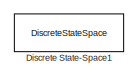
[diagram: root canvas - part 1/4, top center region]
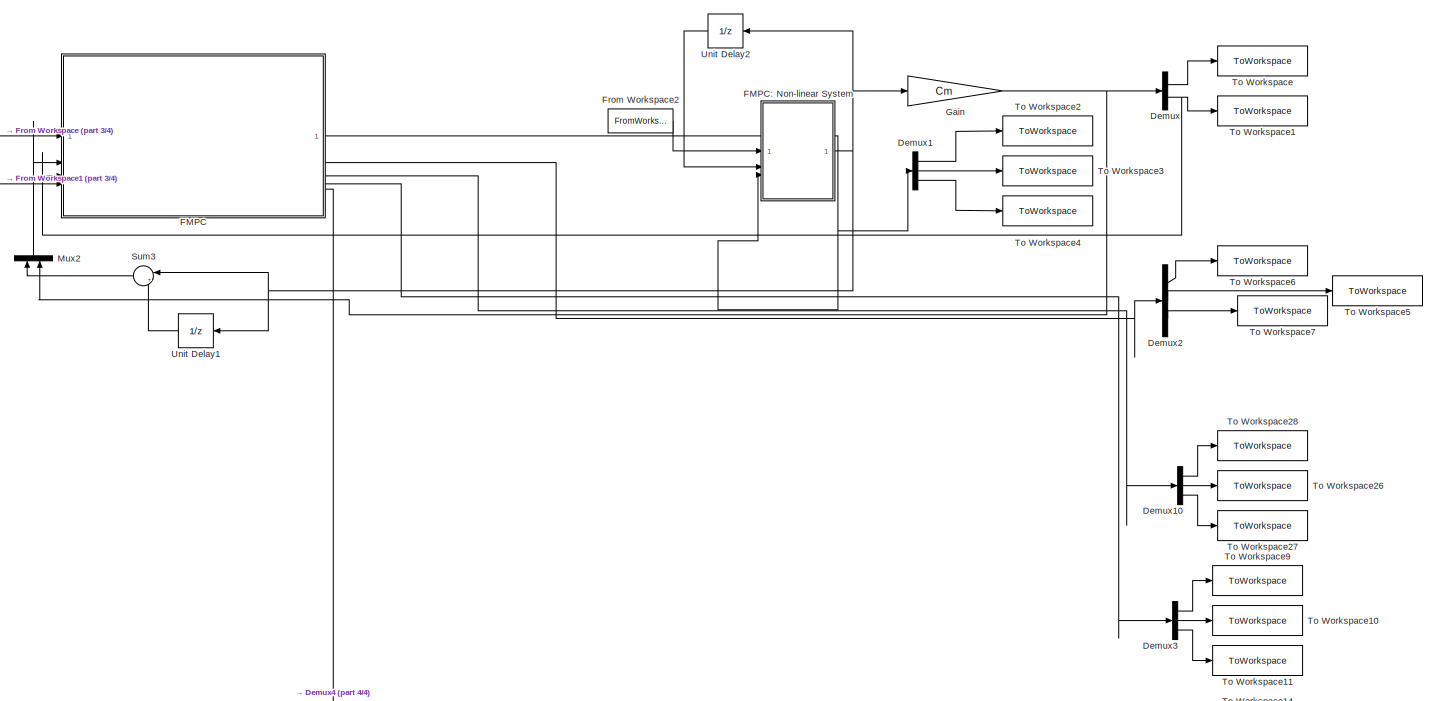
[diagram: root canvas - part 2/4, full width, bottom band]
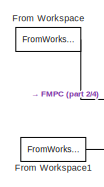
[diagram: root canvas - part 3/4, middle left region]
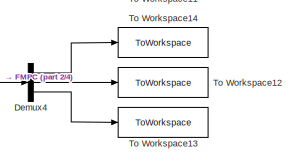
[diagram: root canvas - part 4/4, bottom right region]
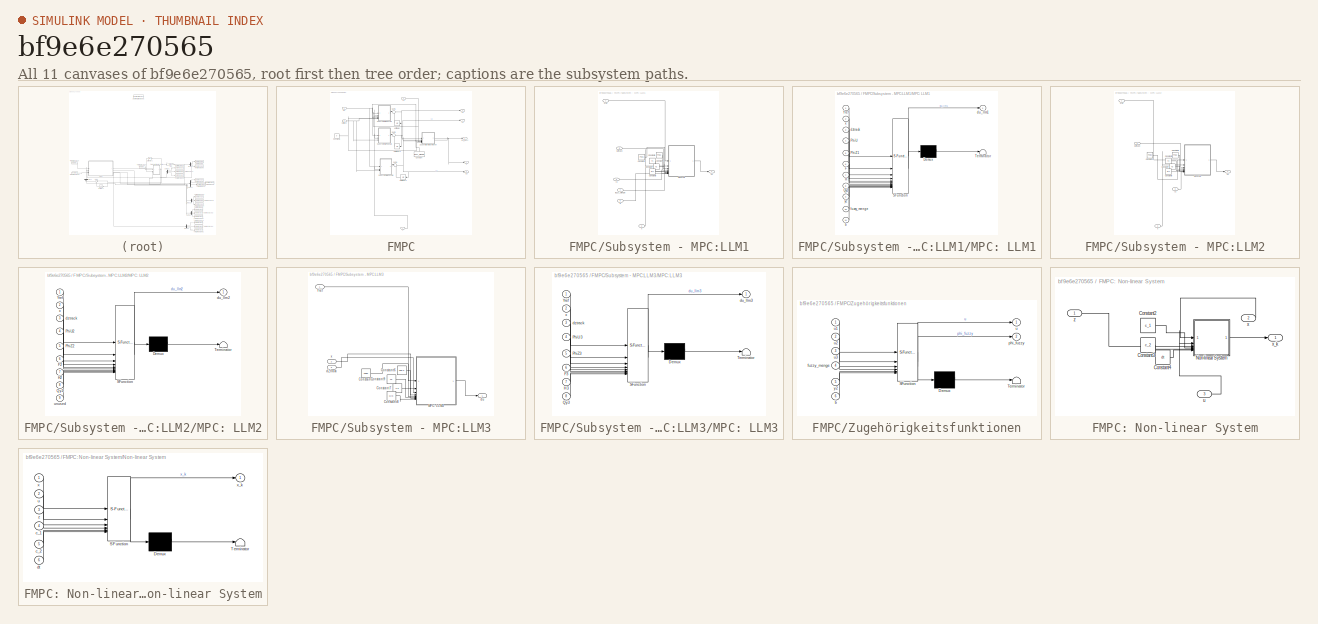
[diagram: thumbnail index - all 11 canvases of the model, root first then tree order]
MODEL slx_bf9e6e270565
KIND model
CONFIG AbsTol = auto
CONFIG EnableMultiTasking = off
CONFIG FixedStep = auto
CONFIG MaxStep = auto
CONFIG MinStep = auto
CONFIG RelTol = 1e-7
CONFIG SampleTimeConstraint = Unconstrained
CONFIG SolverName = VariableStepAuto
CONFIG StartTime = 0.0
CONFIG StopTime = T
BLOCK [Demux] Demux
  Outputs = 2
BLOCK [Demux] Demux1
  Outputs = 3
BLOCK [Demux] Demux10
  Outputs = 3
BLOCK [Demux] Demux2
  Outputs = 3
BLOCK [Demux] Demux3
  Outputs = 3
BLOCK [Demux] Demux4
  Outputs = 3
BLOCK [DiscreteStateSpace] Discrete State-Space1
  A = Am
  B = Bm
  C = C_hilf
  Commented = on
  D = D
  SampleTime = dt
BLOCK [SubSystem] FMPC
BLOCK [Constant] FMPC/Constant
  NameLocation = right
  Value = fuzzy_menge
BLOCK [Constant] FMPC/Constant1
  Value = b
BLOCK [SubSystem] FMPC/Subsystem - MPC:LLM1
BLOCK [Constant] FMPC/Subsystem - MPC:LLM1/Constant1
  SampleTime = dt
  Value = PhiZ1
BLOCK [Constant] FMPC/Subsystem - MPC:LLM1/Constant6
  SampleTime = dt
  Value = PhiU1
BLOCK [Constant] FMPC/Subsystem - MPC:LLM1/Constant7
  SampleTime = dt
  Value = H1
BLOCK [Constant] FMPC/Subsystem - MPC:LLM1/Constant8
  SampleTime = dt
  Value = Qy1
BLOCK [Constant] FMPC/Subsystem - MPC:LLM1/Constant9
  SampleTime = dt
  Value = F1
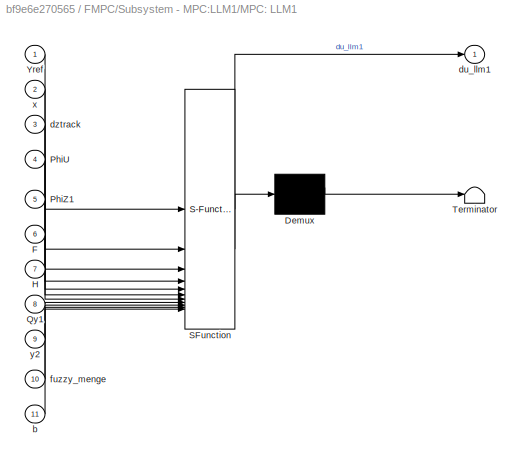
BLOCK [SubSystem] FMPC/Subsystem - MPC:LLM1/MPC: LLM1
  ErrorFcn = Stateflow.Translate.translate
  LibrarySourceBlock = simulink/User-Defined\nFunctions/MATLAB Function
  PermitHierarchicalResolution = ExplicitOnly
  SFBlockType = MATLAB Function
  TreatAsAtomicUnit = on
BLOCK [Demux] FMPC/Subsystem - MPC:LLM1/MPC: LLM1/ Demux 
  Outputs = 1
BLOCK [S-Function] FMPC/Subsystem - MPC:LLM1/MPC: LLM1/ SFunction 
  EnableBusSupport = on
  FunctionName = sf_sfun
  PortCounts = [11 2]
  SFcnIsStateOwnerBlock = off
  SFunctionDeploymentMode = off
  Tag = Stateflow S-Function 2
BLOCK [Terminator] FMPC/Subsystem - MPC:LLM1/MPC: LLM1/ Terminator 
BLOCK [Inport] FMPC/Subsystem - MPC:LLM1/MPC: LLM1/F
  Port = 6
BLOCK [Inport] FMPC/Subsystem - MPC:LLM1/MPC: LLM1/H
  Port = 7
BLOCK [Inport] FMPC/Subsystem - MPC:LLM1/MPC: LLM1/PhiU
  Port = 4
BLOCK [Inport] FMPC/Subsystem - MPC:LLM1/MPC: LLM1/PhiZ1
  Port = 5
BLOCK [Inport] FMPC/Subsystem - MPC:LLM1/MPC: LLM1/Qy1
  Port = 8
BLOCK [Inport] FMPC/Subsystem - MPC:LLM1/MPC: LLM1/Yref
BLOCK [Inport] FMPC/Subsystem - MPC:LLM1/MPC: LLM1/b
  Port = 11
BLOCK [Outport] FMPC/Subsystem - MPC:LLM1/MPC: LLM1/du_llm1
BLOCK [Inport] FMPC/Subsystem - MPC:LLM1/MPC: LLM1/dztrack
  Port = 3
BLOCK [Inport] FMPC/Subsystem - MPC:LLM1/MPC: LLM1/fuzzy_menge
  Port = 10
BLOCK [Inport] FMPC/Subsystem - MPC:LLM1/MPC: LLM1/x
  Port = 2
BLOCK [Inport] FMPC/Subsystem - MPC:LLM1/MPC: LLM1/y2
  Port = 9
BLOCK [Inport] FMPC/Subsystem - MPC:LLM1/Yref
BLOCK [Inport] FMPC/Subsystem - MPC:LLM1/b
  Port = 5
BLOCK [Inport] FMPC/Subsystem - MPC:LLM1/dZtrack
  Port = 6
BLOCK [Outport] FMPC/Subsystem - MPC:LLM1/du
BLOCK [Inport] FMPC/Subsystem - MPC:LLM1/fuzzy_menge
  Port = 4
BLOCK [Inport] FMPC/Subsystem - MPC:LLM1/x
  Port = 2
BLOCK [Inport] FMPC/Subsystem - MPC:LLM1/y2
  Port = 3
BLOCK [SubSystem] FMPC/Subsystem - MPC:LLM2
BLOCK [Constant] FMPC/Subsystem - MPC:LLM2/Constant1
  SampleTime = dt
  Value = PhiZ2
BLOCK [Constant] FMPC/Subsystem - MPC:LLM2/Constant6
  SampleTime = dt
  Value = PhiU2
BLOCK [Constant] FMPC/Subsystem - MPC:LLM2/Constant7
  SampleTime = dt
  Value = H2
BLOCK [Constant] FMPC/Subsystem - MPC:LLM2/Constant8
  SampleTime = dt
  Value = Qy2
BLOCK [Constant] FMPC/Subsystem - MPC:LLM2/Constant9
  SampleTime = dt
  Value = F2
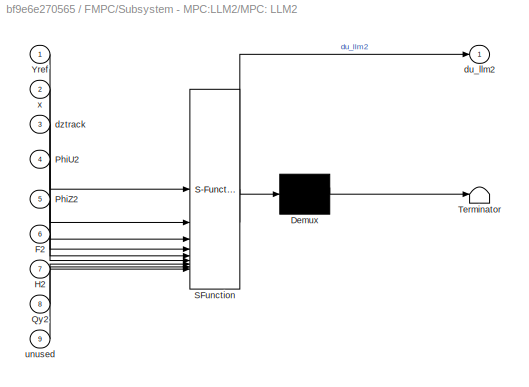
BLOCK [SubSystem] FMPC/Subsystem - MPC:LLM2/MPC: LLM2
  ErrorFcn = Stateflow.Translate.translate
  LibrarySourceBlock = simulink/User-Defined\nFunctions/MATLAB Function
  PermitHierarchicalResolution = ExplicitOnly
  SFBlockType = MATLAB Function
  TreatAsAtomicUnit = on
BLOCK [Demux] FMPC/Subsystem - MPC:LLM2/MPC: LLM2/ Demux 
  Outputs = 1
BLOCK [S-Function] FMPC/Subsystem - MPC:LLM2/MPC: LLM2/ SFunction 
  EnableBusSupport = on
  FunctionName = sf_sfun
  PortCounts = [9 2]
  SFcnIsStateOwnerBlock = off
  SFunctionDeploymentMode = off
  Tag = Stateflow S-Function 3
BLOCK [Terminator] FMPC/Subsystem - MPC:LLM2/MPC: LLM2/ Terminator 
BLOCK [Inport] FMPC/Subsystem - MPC:LLM2/MPC: LLM2/F2
  Port = 6
BLOCK [Inport] FMPC/Subsystem - MPC:LLM2/MPC: LLM2/H2
  Port = 7
BLOCK [Inport] FMPC/Subsystem - MPC:LLM2/MPC: LLM2/PhiU2
  Port = 4
BLOCK [Inport] FMPC/Subsystem - MPC:LLM2/MPC: LLM2/PhiZ2
  Port = 5
BLOCK [Inport] FMPC/Subsystem - MPC:LLM2/MPC: LLM2/Qy2
  Port = 8
BLOCK [Inport] FMPC/Subsystem - MPC:LLM2/MPC: LLM2/Yref
BLOCK [Outport] FMPC/Subsystem - MPC:LLM2/MPC: LLM2/du_llm2
BLOCK [Inport] FMPC/Subsystem - MPC:LLM2/MPC: LLM2/dztrack
  Port = 3
BLOCK [Inport] FMPC/Subsystem - MPC:LLM2/MPC: LLM2/unused
  Port = 9
BLOCK [Inport] FMPC/Subsystem - MPC:LLM2/MPC: LLM2/x
  Port = 2
BLOCK [Inport] FMPC/Subsystem - MPC:LLM2/Yref
BLOCK [Inport] FMPC/Subsystem - MPC:LLM2/dZtrack
  Port = 4
BLOCK [Outport] FMPC/Subsystem - MPC:LLM2/du
BLOCK [Inport] FMPC/Subsystem - MPC:LLM2/x
  Port = 2
BLOCK [Inport] FMPC/Subsystem - MPC:LLM2/y2
  Port = 3
BLOCK [SubSystem] FMPC/Subsystem - MPC:LLM3
BLOCK [Constant] FMPC/Subsystem - MPC:LLM3/Constant1
  SampleTime = dt
  Value = PhiZ3
BLOCK [Constant] FMPC/Subsystem - MPC:LLM3/Constant6
  SampleTime = dt
  Value = PhiU3
BLOCK [Constant] FMPC/Subsystem - MPC:LLM3/Constant7
  SampleTime = dt
  Value = H3
BLOCK [Constant] FMPC/Subsystem - MPC:LLM3/Constant8
  SampleTime = dt
  Value = Qy3
BLOCK [Constant] FMPC/Subsystem - MPC:LLM3/Constant9
  SampleTime = dt
  Value = F3
BLOCK [SubSystem] FMPC/Subsystem - MPC:LLM3/MPC: LLM3
  ErrorFcn = Stateflow.Translate.translate
  LibrarySourceBlock = simulink/User-Defined\nFunctions/MATLAB Function
  PermitHierarchicalResolution = ExplicitOnly
  SFBlockType = MATLAB Function
  TreatAsAtomicUnit = on
BLOCK [Demux] FMPC/Subsystem - MPC:LLM3/MPC: LLM3/ Demux 
  Outputs = 1
BLOCK [S-Function] FMPC/Subsystem - MPC:LLM3/MPC: LLM3/ SFunction 
  EnableBusSupport = on
  FunctionName = sf_sfun
  PortCounts = [8 2]
  SFcnIsStateOwnerBlock = off
  SFunctionDeploymentMode = off
  Tag = Stateflow S-Function 4
BLOCK [Terminator] FMPC/Subsystem - MPC:LLM3/MPC: LLM3/ Terminator 
BLOCK [Inport] FMPC/Subsystem - MPC:LLM3/MPC: LLM3/F3
  Port = 6
BLOCK [Inport] FMPC/Subsystem - MPC:LLM3/MPC: LLM3/H3
  Port = 7
BLOCK [Inport] FMPC/Subsystem - MPC:LLM3/MPC: LLM3/PhiU3
  Port = 4
BLOCK [Inport] FMPC/Subsystem - MPC:LLM3/MPC: LLM3/PhiZ3
  Port = 5
BLOCK [Inport] FMPC/Subsystem - MPC:LLM3/MPC: LLM3/Qy3
  Port = 8
BLOCK [Inport] FMPC/Subsystem - MPC:LLM3/MPC: LLM3/Yref
BLOCK [Outport] FMPC/Subsystem - MPC:LLM3/MPC: LLM3/du_llm3
BLOCK [Inport] FMPC/Subsystem - MPC:LLM3/MPC: LLM3/dztrack
  Port = 3
BLOCK [Inport] FMPC/Subsystem - MPC:LLM3/MPC: LLM3/x
  Port = 2
BLOCK [Inport] FMPC/Subsystem - MPC:LLM3/Yref
BLOCK [Inport] FMPC/Subsystem - MPC:LLM3/dZtrack
  Port = 3
BLOCK [Outport] FMPC/Subsystem - MPC:LLM3/du
BLOCK [Inport] FMPC/Subsystem - MPC:LLM3/x
  Port = 2
BLOCK [Sum] FMPC/Sum1
  Inputs = |++
BLOCK [Sum] FMPC/Sum2
  Inputs = |++
BLOCK [Sum] FMPC/Sum4
  Inputs = |++
BLOCK [UnitDelay] FMPC/Unit Delay
  HasFrameUpgradeWarning = on
  SampleTime = dt
BLOCK [UnitDelay] FMPC/Unit Delay3
  HasFrameUpgradeWarning = on
  SampleTime = dt
BLOCK [UnitDelay] FMPC/Unit Delay4
  HasFrameUpgradeWarning = on
  SampleTime = dt
BLOCK [Inport] FMPC/Yref
BLOCK [SubSystem] FMPC/Zugehörigkeitsfunktionen
  ErrorFcn = Stateflow.Translate.translate
  LibrarySourceBlock = simulink/User-Defined\nFunctions/MATLAB Function
  PermitHierarchicalResolution = ExplicitOnly
  SFBlockType = MATLAB Function
  TreatAsAtomicUnit = on
BLOCK [Demux] FMPC/Zugehörigkeitsfunktionen/ Demux 
  Outputs = 1
BLOCK [S-Function] FMPC/Zugehörigkeitsfunktionen/ SFunction 
  EnableBusSupport = on
  FunctionName = sf_sfun
  PortCounts = [6 3]
  SFcnIsStateOwnerBlock = off
  SFunctionDeploymentMode = off
  Tag = Stateflow S-Function 6
BLOCK [Terminator] FMPC/Zugehörigkeitsfunktionen/ Terminator 
BLOCK [Inport] FMPC/Zugehörigkeitsfunktionen/b
  Port = 6
BLOCK [Inport] FMPC/Zugehörigkeitsfunktionen/fuzzy_menge
  Port = 4
BLOCK [Outport] FMPC/Zugehörigkeitsfunktionen/phi_fuzzy
  Port = 2
BLOCK [Outport] FMPC/Zugehörigkeitsfunktionen/u
BLOCK [Inport] FMPC/Zugehörigkeitsfunktionen/u1
BLOCK [Inport] FMPC/Zugehörigkeitsfunktionen/u2
  Port = 2
BLOCK [Inport] FMPC/Zugehörigkeitsfunktionen/u3
  Port = 3
BLOCK [Inport] FMPC/Zugehörigkeitsfunktionen/y2
  Port = 5
BLOCK [Inport] FMPC/dZtrack
  Port = 4
BLOCK [Outport] FMPC/phi_fuzzy
  Port = 2
BLOCK [Outport] FMPC/u
BLOCK [Outport] FMPC/u1
  Port = 3
BLOCK [Outport] FMPC/u2
  Port = 4
BLOCK [Outport] FMPC/u3
  Port = 5
BLOCK [Inport] FMPC/x
  Port = 2
BLOCK [Inport] FMPC/y2
  Port = 3
BLOCK [SubSystem] FMPC: Non-linear System
BLOCK [Constant] FMPC: Non-linear System/Constant2
  Value = c_1
BLOCK [Constant] FMPC: Non-linear System/Constant3
  Value = c_2
BLOCK [Constant] FMPC: Non-linear System/Constant4
  Value = dt
BLOCK [SubSystem] FMPC: Non-linear System/Non-linear System
  ErrorFcn = Stateflow.Translate.translate
  LibrarySourceBlock = simulink/User-Defined\nFunctions/MATLAB Function
  PermitHierarchicalResolution = ExplicitOnly
  SFBlockType = MATLAB Function
  TreatAsAtomicUnit = on
BLOCK [Demux] FMPC: Non-linear System/Non-linear System/ Demux 
  Outputs = 1
BLOCK [S-Function] FMPC: Non-linear System/Non-linear System/ SFunction 
  EnableBusSupport = on
  FunctionName = sf_sfun
  PortCounts = [6 2]
  SFcnIsStateOwnerBlock = off
  SFunctionDeploymentMode = off
  Tag = Stateflow S-Function 1
BLOCK [Terminator] FMPC: Non-linear System/Non-linear System/ Terminator 
BLOCK [Inport] FMPC: Non-linear System/Non-linear System/c_1
  Port = 4
BLOCK [Inport] FMPC: Non-linear System/Non-linear System/c_2
  Port = 5
BLOCK [Inport] FMPC: Non-linear System/Non-linear System/dt
  Port = 6
BLOCK [Inport] FMPC: Non-linear System/Non-linear System/u
  Port = 2
BLOCK [Inport] FMPC: Non-linear System/Non-linear System/x
BLOCK [Outport] FMPC: Non-linear System/Non-linear System/x_k
BLOCK [Inport] FMPC: Non-linear System/Non-linear System/z
  Port = 3
BLOCK [Inport] FMPC: Non-linear System/u
  Port = 3
BLOCK [Inport] FMPC: Non-linear System/x
  Port = 2
BLOCK [Outport] FMPC: Non-linear System/x_k
BLOCK [Inport] FMPC: Non-linear System/z
BLOCK [FromWorkspace] From Workspace
  OutDataTypeStr = double
  SampleTime = dt
  VariableName = Y_fuehrung_SIM
BLOCK [FromWorkspace] From Workspace1
  OutDataTypeStr = double
  SampleTime = dt
  VariableName = dztrack_SIM
BLOCK [FromWorkspace] From Workspace2
  OutDataTypeStr = double
  SampleTime = dt
  VariableName = ztrack_SIM
BLOCK [Gain] Gain
  Gain = Cm
  Multiplication = Matrix(K*u)
BLOCK [Mux] Mux2
  DisplayOption = bar
  Inputs = 2
  NameLocation = right
BLOCK [Sum] Sum3
  Inputs = |+-
BLOCK [ToWorkspace] To Workspace
  FixptAsFi = on
  MaxDataPoints = inf
  SampleTime = -1
  Save2DSignal = 2-D array (concatenate along first dimension)
  VariableName = y1
BLOCK [ToWorkspace] To Workspace1
  FixptAsFi = on
  MaxDataPoints = inf
  SampleTime = -1
  Save2DSignal = 2-D array (concatenate along first dimension)
  VariableName = y2
BLOCK [ToWorkspace] To Workspace10
  FixptAsFi = on
  MaxDataPoints = inf
  SampleTime = -1
  Save2DSignal = 2-D array (concatenate along first dimension)
  VariableName = u_llm2_2
BLOCK [ToWorkspace] To Workspace11
  FixptAsFi = on
  MaxDataPoints = inf
  SampleTime = -1
  Save2DSignal = 2-D array (concatenate along first dimension)
  VariableName = u_llm2_3
BLOCK [ToWorkspace] To Workspace12
  FixptAsFi = on
  MaxDataPoints = inf
  SampleTime = -1
  Save2DSignal = 2-D array (concatenate along first dimension)
  VariableName = u_llm3_2
BLOCK [ToWorkspace] To Workspace13
  FixptAsFi = on
  MaxDataPoints = inf
  SampleTime = -1
  Save2DSignal = 2-D array (concatenate along first dimension)
  VariableName = u_llm3_3
BLOCK [ToWorkspace] To Workspace14
  FixptAsFi = on
  MaxDataPoints = inf
  SampleTime = -1
  Save2DSignal = 2-D array (concatenate along first dimension)
  VariableName = u_llm3_1
BLOCK [ToWorkspace] To Workspace2
  FixptAsFi = on
  MaxDataPoints = inf
  SampleTime = -1
  Save2DSignal = 2-D array (concatenate along first dimension)
  VariableName = u1
BLOCK [ToWorkspace] To Workspace26
  FixptAsFi = on
  MaxDataPoints = inf
  SampleTime = -1
  Save2DSignal = 2-D array (concatenate along first dimension)
  VariableName = u_llm1_2
BLOCK [ToWorkspace] To Workspace27
  FixptAsFi = on
  MaxDataPoints = inf
  SampleTime = -1
  Save2DSignal = 2-D array (concatenate along first dimension)
  VariableName = u_llm1_3
BLOCK [ToWorkspace] To Workspace28
  FixptAsFi = on
  MaxDataPoints = inf
  SampleTime = -1
  Save2DSignal = 2-D array (concatenate along first dimension)
  VariableName = u_llm1_1
BLOCK [ToWorkspace] To Workspace3
  FixptAsFi = on
  MaxDataPoints = inf
  SampleTime = -1
  Save2DSignal = 2-D array (concatenate along first dimension)
  VariableName = u2
BLOCK [ToWorkspace] To Workspace4
  FixptAsFi = on
  MaxDataPoints = inf
  SampleTime = -1
  Save2DSignal = 2-D array (concatenate along first dimension)
  VariableName = u3
BLOCK [ToWorkspace] To Workspace5
  FixptAsFi = on
  MaxDataPoints = inf
  SampleTime = -1
  Save2DSignal = 2-D array (concatenate along first dimension)
  VariableName = phi_fuzzy2
BLOCK [ToWorkspace] To Workspace6
  FixptAsFi = on
  MaxDataPoints = inf
  SampleTime = -1
  Save2DSignal = 2-D array (concatenate along first dimension)
  VariableName = phi_fuzzy1
BLOCK [ToWorkspace] To Workspace7
  FixptAsFi = on
  MaxDataPoints = inf
  SampleTime = -1
  Save2DSignal = 2-D array (concatenate along first dimension)
  VariableName = phi_fuzzy3
BLOCK [ToWorkspace] To Workspace9
  FixptAsFi = on
  MaxDataPoints = inf
  SampleTime = -1
  Save2DSignal = 2-D array (concatenate along first dimension)
  VariableName = u_llm2_1
BLOCK [UnitDelay] Unit Delay1
  HasFrameUpgradeWarning = on
  SampleTime = -1
BLOCK [UnitDelay] Unit Delay2
  HasFrameUpgradeWarning = on
  SampleTime = -1
LINE Demux10:1 -> To Workspace28:1
LINE Demux10:2 -> To Workspace26:1
LINE Demux10:3 -> To Workspace27:1
LINE Demux1:1 -> To Workspace2:1
LINE Demux1:2 -> To Workspace3:1
LINE Demux1:3 -> To Workspace4:1
LINE Demux2:1 -> To Workspace6:1
LINE Demux2:2 -> To Workspace5:1
LINE Demux2:3 -> To Workspace7:1
LINE Demux3:1 -> To Workspace9:1
LINE Demux3:2 -> To Workspace10:1
LINE Demux3:3 -> To Workspace11:1
LINE Demux4:1 -> To Workspace14:1
LINE Demux4:2 -> To Workspace12:1
LINE Demux4:3 -> To Workspace13:1
LINE Demux:1 -> To Workspace:1
NET Demux:2 -> FMPC:3, To Workspace1:1
NET FMPC/Constant1:1 -> FMPC/Subsystem - MPC:LLM1:5, FMPC/Zugehörigkeitsfunktionen:6
NET FMPC/Constant:1 -> FMPC/Subsystem - MPC:LLM1:4, FMPC/Zugehörigkeitsfunktionen:4
LINE FMPC/Subsystem - MPC:LLM1/Constant1:1 -> FMPC/Subsystem - MPC:LLM1/MPC: LLM1:5
LINE FMPC/Subsystem - MPC:LLM1/Constant6:1 -> FMPC/Subsystem - MPC:LLM1/MPC: LLM1:4
LINE FMPC/Subsystem - MPC:LLM1/Constant7:1 -> FMPC/Subsystem - MPC:LLM1/MPC: LLM1:7
LINE FMPC/Subsystem - MPC:LLM1/Constant8:1 -> FMPC/Subsystem - MPC:LLM1/MPC: LLM1:8
LINE FMPC/Subsystem - MPC:LLM1/Constant9:1 -> FMPC/Subsystem - MPC:LLM1/MPC: LLM1:6
LINE FMPC/Subsystem - MPC:LLM1/MPC: LLM1:1 -> FMPC/Subsystem - MPC:LLM1/du:1
LINE FMPC/Subsystem - MPC:LLM1/Yref:1 -> FMPC/Subsystem - MPC:LLM1/MPC: LLM1:1
LINE FMPC/Subsystem - MPC:LLM1/b:1 -> FMPC/Subsystem - MPC:LLM1/MPC: LLM1:11
LINE FMPC/Subsystem - MPC:LLM1/dZtrack:1 -> FMPC/Subsystem - MPC:LLM1/MPC: LLM1:3
LINE FMPC/Subsystem - MPC:LLM1/fuzzy_menge:1 -> FMPC/Subsystem - MPC:LLM1/MPC: LLM1:10
LINE FMPC/Subsystem - MPC:LLM1/x:1 -> FMPC/Subsystem - MPC:LLM1/MPC: LLM1:2
LINE FMPC/Subsystem - MPC:LLM1/y2:1 -> FMPC/Subsystem - MPC:LLM1/MPC: LLM1:9
LINE FMPC/Subsystem - MPC:LLM1:1 -> FMPC/Sum1:1
LINE FMPC/Subsystem - MPC:LLM2/Constant1:1 -> FMPC/Subsystem - MPC:LLM2/MPC: LLM2:5
LINE FMPC/Subsystem - MPC:LLM2/Constant6:1 -> FMPC/Subsystem - MPC:LLM2/MPC: LLM2:4
LINE FMPC/Subsystem - MPC:LLM2/Constant7:1 -> FMPC/Subsystem - MPC:LLM2/MPC: LLM2:7
LINE FMPC/Subsystem - MPC:LLM2/Constant8:1 -> FMPC/Subsystem - MPC:LLM2/MPC: LLM2:8
LINE FMPC/Subsystem - MPC:LLM2/Constant9:1 -> FMPC/Subsystem - MPC:LLM2/MPC: LLM2:6
LINE FMPC/Subsystem - MPC:LLM2/MPC: LLM2:1 -> FMPC/Subsystem - MPC:LLM2/du:1
LINE FMPC/Subsystem - MPC:LLM2/Yref:1 -> FMPC/Subsystem - MPC:LLM2/MPC: LLM2:1
LINE FMPC/Subsystem - MPC:LLM2/dZtrack:1 -> FMPC/Subsystem - MPC:LLM2/MPC: LLM2:3
LINE FMPC/Subsystem - MPC:LLM2/x:1 -> FMPC/Subsystem - MPC:LLM2/MPC: LLM2:2
LINE FMPC/Subsystem - MPC:LLM2/y2:1 -> FMPC/Subsystem - MPC:LLM2/MPC: LLM2:9
LINE FMPC/Subsystem - MPC:LLM2:1 -> FMPC/Sum2:1
LINE FMPC/Subsystem - MPC:LLM3/Constant1:1 -> FMPC/Subsystem - MPC:LLM3/MPC: LLM3:5
LINE FMPC/Subsystem - MPC:LLM3/Constant6:1 -> FMPC/Subsystem - MPC:LLM3/MPC: LLM3:4
LINE FMPC/Subsystem - MPC:LLM3/Constant7:1 -> FMPC/Subsystem - MPC:LLM3/MPC: LLM3:7
LINE FMPC/Subsystem - MPC:LLM3/Constant8:1 -> FMPC/Subsystem - MPC:LLM3/MPC: LLM3:8
LINE FMPC/Subsystem - MPC:LLM3/Constant9:1 -> FMPC/Subsystem - MPC:LLM3/MPC: LLM3:6
LINE FMPC/Subsystem - MPC:LLM3/MPC: LLM3:1 -> FMPC/Subsystem - MPC:LLM3/du:1
LINE FMPC/Subsystem - MPC:LLM3/Yref:1 -> FMPC/Subsystem - MPC:LLM3/MPC: LLM3:1
LINE FMPC/Subsystem - MPC:LLM3/dZtrack:1 -> FMPC/Subsystem - MPC:LLM3/MPC: LLM3:3
LINE FMPC/Subsystem - MPC:LLM3/x:1 -> FMPC/Subsystem - MPC:LLM3/MPC: LLM3:2
LINE FMPC/Subsystem - MPC:LLM3:1 -> FMPC/Sum4:1
NET FMPC/Sum1:1 -> FMPC/Unit Delay:1, FMPC/Zugehörigkeitsfunktionen:1, FMPC/u1:1
NET FMPC/Sum2:1 -> FMPC/Unit Delay3:1, FMPC/Zugehörigkeitsfunktionen:2, FMPC/u2:1
NET FMPC/Sum4:1 -> FMPC/Unit Delay4:1, FMPC/Zugehörigkeitsfunktionen:3, FMPC/u3:1
LINE FMPC/Unit Delay3:1 -> FMPC/Sum2:2
LINE FMPC/Unit Delay4:1 -> FMPC/Sum4:2
LINE FMPC/Unit Delay:1 -> FMPC/Sum1:2
NET FMPC/Yref:1 -> FMPC/Subsystem - MPC:LLM1:1, FMPC/Subsystem - MPC:LLM2:1, FMPC/Subsystem - MPC:LLM3:1
LINE FMPC/Zugehörigkeitsfunktionen:1 -> FMPC/u:1
LINE FMPC/Zugehörigkeitsfunktionen:2 -> FMPC/phi_fuzzy:1
NET FMPC/dZtrack:1 -> FMPC/Subsystem - MPC:LLM1:6, FMPC/Subsystem - MPC:LLM2:4, FMPC/Subsystem - MPC:LLM3:3
NET FMPC/x:1 -> FMPC/Subsystem - MPC:LLM1:2, FMPC/Subsystem - MPC:LLM2:2, FMPC/Subsystem - MPC:LLM3:2
NET FMPC/y2:1 -> FMPC/Subsystem - MPC:LLM1:3, FMPC/Zugehörigkeitsfunktionen:5
LINE FMPC: Non-linear System/Constant2:1 -> FMPC: Non-linear System/Non-linear System:4
LINE FMPC: Non-linear System/Constant3:1 -> FMPC: Non-linear System/Non-linear System:5
LINE FMPC: Non-linear System/Constant4:1 -> FMPC: Non-linear System/Non-linear System:6
LINE FMPC: Non-linear System/Non-linear System:1 -> FMPC: Non-linear System/x_k:1
LINE FMPC: Non-linear System/u:1 -> FMPC: Non-linear System/Non-linear System:2
LINE FMPC: Non-linear System/x:1 -> FMPC: Non-linear System/Non-linear System:1
LINE FMPC: Non-linear System/z:1 -> FMPC: Non-linear System/Non-linear System:3
NET FMPC: Non-linear System:1 -> Gain:1, Sum3:1, Unit Delay1:1, Unit Delay2:1
NET FMPC:1 -> Demux1:1, FMPC: Non-linear System:3
LINE FMPC:2 -> Demux2:1
LINE FMPC:3 -> Demux10:1
LINE FMPC:4 -> Demux3:1
LINE FMPC:5 -> Demux4:1
LINE From Workspace1:1 -> FMPC:4
LINE From Workspace2:1 -> FMPC: Non-linear System:1
LINE From Workspace:1 -> FMPC:1
NET Gain:1 -> Demux:1, Mux2:2
LINE Mux2:1 -> FMPC:2
LINE Sum3:1 -> Mux2:1
LINE Unit Delay1:1 -> Sum3:2
LINE Unit Delay2:1 -> FMPC: Non-linear System:2
note: NET lines group one-source signal fan-out (src -> all destinations, sorted); 1:1 wires keep LINE
CHART FMPC: Non-linear System/Non-linear System states=1 transitions=1
  STATE_LABEL 'eML_blk_kernel()'
  STATE_LABEL 'SCRIPT:\nfunction x_k = fcn(x,u,z,c_1,c_2,dt)\n    \n    g_RS = 2.6;   \n    r_3  = 0.3;   \n    r_2 = r_3 / g_RS;    \n    r_1 = (r_2 + r_3)/2; \n    r_p = r_3-r_2;\n    r_Wheel=0.3;\n    g_TT = 66/54*80/23;\n\n    d_s  = 0.096;\n    m_p  = 1*4;    \n    m_car = 1300;\n\n    J_1  = .1;      \n    J_2  = 0.03;     \n    J_3  = 0.1;     \n    J_p  = 0.01*4;   \n    J_4  = m_car*r_Wheel^2 / g_TT^2;  \n\n    M_1 = J_1 + ...<+3608ch>'
CHART FMPC/Subsystem - MPC:LLM1/MPC: LLM1 states=1 transitions=1
  STATE_LABEL 'eML_blk_kernel()'
  STATE_LABEL "SCRIPT:\nfunction du_llm1 = fcn(Yref,x,dztrack,PhiU,PhiZ1,F,H,Qy1,y2,fuzzy_menge,b)\n    nu = 3;\n    if y2 <= fuzzy_menge(1,2)-b\n        f = -PhiU' * Qy1 * ( Yref - F*x - PhiZ1*dztrack);\n        dU = -H\\f; % -inv(H)*f\n        du_llm1 = dU(1:nu,1);\n    else\n        du_llm1 = zeros(nu,1);\n    end\n    \nend\n \n\n"
CHART FMPC/Subsystem - MPC:LLM2/MPC: LLM2 states=1 transitions=1
  STATE_LABEL 'eML_blk_kernel()'
  STATE_LABEL "SCRIPT:\nfunction du_llm2 = fcn(Yref,x,dztrack,PhiU2,PhiZ2,F2,H2,Qy2,~)\n    nu = 3;\n    f = -PhiU2' * Qy2 * ( Yref - F2*x - PhiZ2*dztrack);\n    dU = -H2\\f; % -inv(H)*f\n    du_llm2 = dU(1:nu,1);\n    \nend\n \n\n"
CHART FMPC/Subsystem - MPC:LLM3/MPC: LLM3 states=1 transitions=1
  STATE_LABEL 'eML_blk_kernel()'
  STATE_LABEL "SCRIPT:\nfunction du_llm3 = fcn(Yref,x,dztrack,PhiU3,PhiZ3,F3,H3,Qy3)\n    nu = 3;\n    f3 = -PhiU3' * Qy3 * ( Yref - F3*x - PhiZ3*dztrack);\n    dU = -H3\\f3; % -inv(H)*f\n    du_llm3 = dU(1:nu,1);\n    \nend\n \n\n"
CHART FMPC/Zugehörigkeitsfunktionen states=1 transitions=1
  STATE_LABEL 'eML_blk_kernel()'
  STATE_LABEL 'SCRIPT:\nfunction [u,phi_fuzzy] = fcn(u1,u2,u3,fuzzy_menge,y2,b)\n    %% 3x Modelle\n  phi_fuzzy1 = trapmf(y2,[-100000000,-100000000,fuzzy_menge(1,1)+b,fuzzy_menge(1,2)-b]);\n  phi_fuzzy2 = trapmf(y2,[fuzzy_menge(1,1)+b,fuzzy_menge(1,2)-b,fuzzy_menge(1,2)+b,fuzzy_menge(2,2)-b]);\n  phi_fuzzy3 = trapmf(y2,[fuzzy_menge(1,2)+b,fuzzy_menge(2,2)-b,100000000,100000000]);\n\n    u = (u1 * phi_fuzzy1 + u2 * phi_...<+754ch>'
CHART  states=0 transitions=0
CHART  states=0 transitions=0
CHART  states=0 transitions=0
CHART  states=0 transitions=0
CHART  states=0 transitions=0
